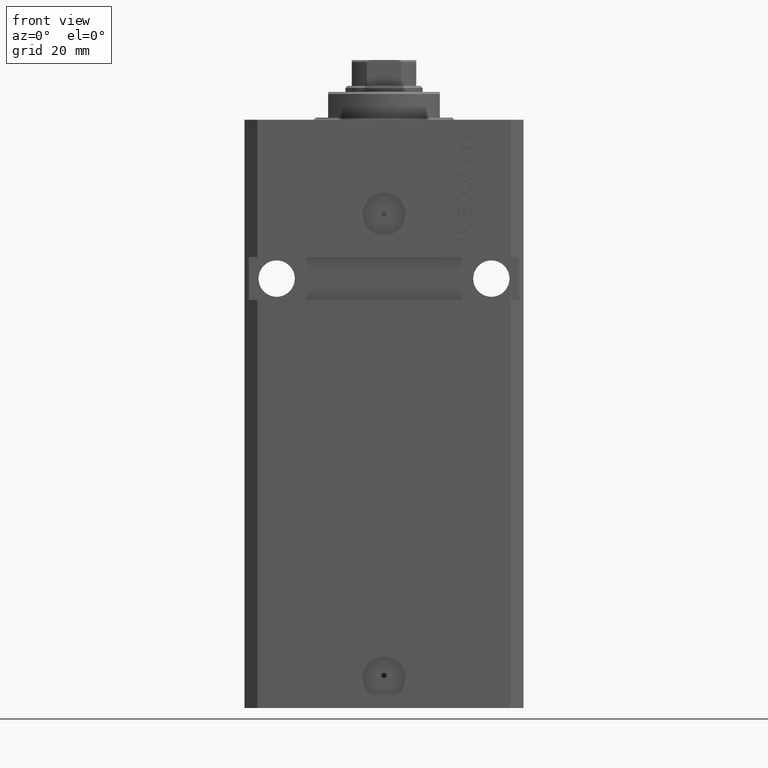
[diagram: clean part render]
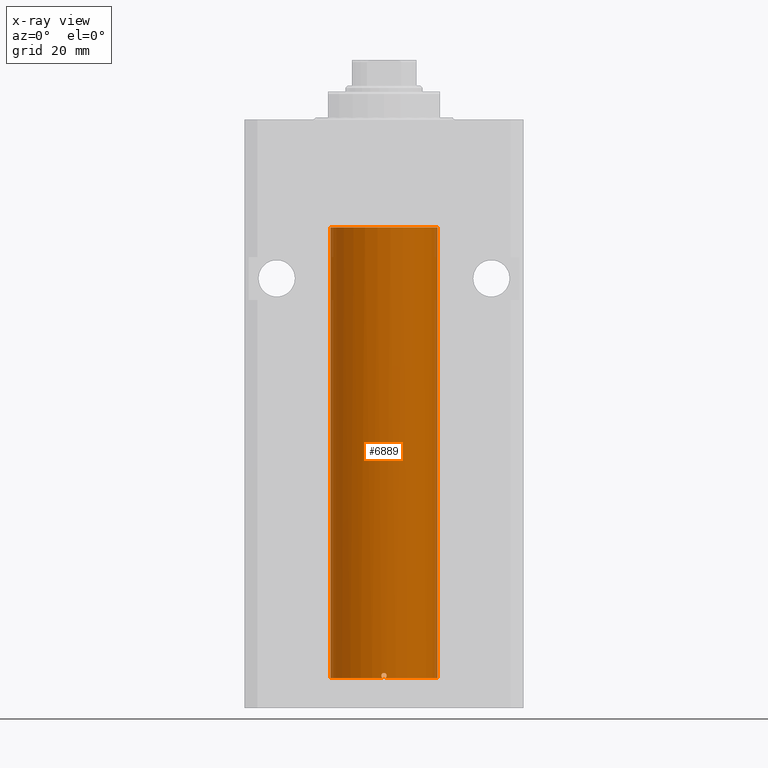
[diagram: x-ray — body ghosted, one internal face saturated and labeled with its STEP entity id]
A machine part, front view, then the same camera in x-ray: the body is ghosted and one INTERNAL B-rep face — a face not visible from any outside direction — is saturated and labeled: STEP entity #6889.
In plain terms, the highlighted cylindrical surface (partial cylindrical patch) has radius 12.5 mm, axis along (0, 0, 1).
Its self-contained STEP definition (entity closure, byte-faithful):
#137 = CARTESIAN_POINT ( 'NONE',  ( 0.3251408448057627743, -12.49631649875954409, -128.9162955772238206 ) ) ;
#516 = AXIS2_PLACEMENT_3D ( 'NONE', #30335, #27629, #41283 ) ;
#998 = CARTESIAN_POINT ( 'NONE',  ( 12.50000000000000000, 0.000000000000000000, -130.0999999999999943 ) ) ;
#2178 = VERTEX_POINT ( 'NONE', #8771 ) ;
#2382 = CARTESIAN_POINT ( 'NONE',  ( -12.48437204107163012, -0.6248637920779658295, -125.1654228524065360 ) ) ;
#2831 = CARTESIAN_POINT ( 'NONE',  ( 0.6250000000080510043, -12.48436522214846001, -129.4749999999992269 ) ) ;
#3267 = CARTESIAN_POINT ( 'NONE',  ( 0.6249999999998495648, -12.48436522214887034, -129.3934521701002325 ) ) ;
#3599 = VERTEX_POINT ( 'NONE', #35480 ) ;
#3816 = DIRECTION ( 'NONE',  ( -0.000000000000000000, -0.000000000000000000, 1.000000000000000000 ) ) ;
#4370 = CARTESIAN_POINT ( 'NONE',  ( 0.3151108292487771467, -12.49625698805481022, -130.0209369568817976 ) ) ;
#6196 = CARTESIAN_POINT ( 'NONE',  ( -12.49625500642807729, -0.3269795983093208847, -124.4429332688023351 ) ) ;
#6434 = CARTESIAN_POINT ( 'NONE',  ( 0.1629224624750996719, -12.50000332393458891, -128.8499335213027450 ) ) ;
#6822 = CIRCLE ( 'NONE', #11873, 12.50000000000000000 ) ;
#6889 = ADVANCED_FACE ( 'NONE', ( #13890 ), #37482, .F. ) ;
#7216 = VECTOR ( 'NONE', #31366, 1000.000000000000000 ) ;
#7877 = VERTEX_POINT ( 'NONE', #20058 ) ;
#8227 = LINE ( 'NONE', #32728, #11218 ) ;
#8771 = CARTESIAN_POINT ( 'NONE',  ( 12.50000000000000000, 0.000000000000000000, -130.0999999999999943 ) ) ;
#9066 = ORIENTED_EDGE ( 'NONE', *, *, #18235, .T. ) ;
#9577 = CARTESIAN_POINT ( 'NONE',  ( 0.6087772866342663347, -12.48520622767670396, -129.3115254180584088 ) ) ;
#9907 = CARTESIAN_POINT ( 'NONE',  ( -0.1650848372272809561, -12.50000000000000533, -130.0999999999999943 ) ) ;
#10054 = EDGE_CURVE ( 'NONE', #32502, #25539, #30977, .T. ) ;
#10133 = CARTESIAN_POINT ( 'NONE',  ( -0.5573321180045979206, -12.48810161786719419, -129.8014823860453646 ) ) ;
#10361 = CIRCLE ( 'NONE', #33347, 12.50000000000000000 ) ;
#11104 = CARTESIAN_POINT ( 'NONE',  ( 0.1636982395582852745, -12.49915742890631876, -130.0837239784702888 ) ) ;
#11218 = VECTOR ( 'NONE', #22621, 1000.000000000000000 ) ;
#11873 = AXIS2_PLACEMENT_3D ( 'NONE', #19669, #13785, #17168 ) ;
#11951 = CARTESIAN_POINT ( 'NONE',  ( -12.50000000000000000, 1.530808498934191521E-15, -130.0999999999999943 ) ) ;
#12846 = EDGE_LOOP ( 'NONE', ( #42443, #9066, #42719, #36272, #17054, #31923, #24996, #41287, #22444, #16171 ) ) ;
#13785 = DIRECTION ( 'NONE',  ( 0.000000000000000000, 0.000000000000000000, 1.000000000000000000 ) ) ;
#13838 = CARTESIAN_POINT ( 'NONE',  ( -0.5571821530518588084, -12.48810851326189031, -129.1482778446419672 ) ) ;
#13890 = FACE_OUTER_BOUND ( 'NONE', #12846, .T. ) ;
#14163 = CARTESIAN_POINT ( 'NONE',  ( -12.50000000000000000, 1.530808498934191521E-15, -130.0999999999999943 ) ) ;
#14187 = EDGE_CURVE ( 'NONE', #21652, #32502, #17294, .T. ) ;
#14697 = CARTESIAN_POINT ( 'NONE',  ( 0.5573988467447082984, -12.48809900631781211, -129.8014014793547801 ) ) ;
#15421 = CARTESIAN_POINT ( 'NONE',  ( -12.50000000000017941, 3.883381307462307207E-13, -125.6250000000035953 ) ) ;
#16171 = ORIENTED_EDGE ( 'NONE', *, *, #10054, .T. ) ;
#16552 = CARTESIAN_POINT ( 'NONE',  ( -0.3266214369556185160, -12.49626442692393802, -128.9177587996186958 ) ) ;
#16980 = CARTESIAN_POINT ( 'NONE',  ( -12.48811925907523879, -0.5569488909189619363, -125.3270960450317801 ) ) ;
#17054 = ORIENTED_EDGE ( 'NONE', *, *, #18023, .T. ) ;
#17168 = DIRECTION ( 'NONE',  ( 1.000000000000000000, 0.000000000000000000, 0.000000000000000000 ) ) ;
#17224 = CARTESIAN_POINT ( 'NONE',  ( 0.5460961315382579784, -12.48810487413754089, -129.1601782428394074 ) ) ;
#17294 = B_SPLINE_CURVE_WITH_KNOTS ( 'NONE', 3,
 ( #2831, #3267, #9577, #17224, #23535, #137, #6434, #30955, #16552, #13838, #20163, #37208 ),
 .UNSPECIFIED., .F., .F.,
 ( 4, 2, 2, 2, 2, 4 ),
 ( 0.0009773924225144152694, 0.001221692871650373541, 0.001465993320786332030, 0.001954594219058248573, 0.002443195117330164250, 0.002931796015602080793 ),
 .UNSPECIFIED. ) ;
#17768 = CARTESIAN_POINT ( 'NONE',  ( -0.6250000000000024425, -12.48436522214886502, -129.6398435048618865 ) ) ;
#17782 = EDGE_CURVE ( 'NONE', #25539, #21652, #30518, .T. ) ;
#18023 = EDGE_CURVE ( 'NONE', #7877, #39152, #23275, .T. ) ;
#18097 = CARTESIAN_POINT ( 'NONE',  ( 0.3844519291904531233, -12.49421963472024721, -129.9744730364705845 ) ) ;
#18235 = EDGE_CURVE ( 'NONE', #34964, #3599, #34622, .T. ) ;
#18936 = DIRECTION ( 'NONE',  ( 0.000000000000000000, 0.000000000000000000, 1.000000000000000000 ) ) ;
#19184 = EDGE_CURVE ( 'NONE', #25539, #2178, #10361, .T. ) ;
#19377 = CARTESIAN_POINT ( 'NONE',  ( 0.000000000000000000, 0.000000000000000000, -25.10000000000000142 ) ) ;
#19669 = CARTESIAN_POINT ( 'NONE',  ( 0.000000000000000000, 0.000000000000000000, -130.0999999999999943 ) ) ;
#20058 = CARTESIAN_POINT ( 'NONE',  ( -12.50000000000000000, 1.530808498934191521E-15, -25.10000000000000142 ) ) ;
#20163 = CARTESIAN_POINT ( 'NONE',  ( -0.6250000000000021094, -12.48436522214886146, -129.3100276135026832 ) ) ;
#20594 = CARTESIAN_POINT ( 'NONE',  ( -12.48435842450558297, -0.6251357828645137671, -124.8356079937140208 ) ) ;
#20658 = EDGE_CURVE ( 'NONE', #3599, #22661, #34974, .T. ) ;
#20962 = CARTESIAN_POINT ( 'NONE',  ( 0.000000000000000000, 0.000000000000000000, -130.0999999999999943 ) ) ;
#21027 = CARTESIAN_POINT ( 'NONE',  ( 1.470104640658485388E-15, -12.50000000000000000, -130.0999999999999943 ) ) ;
#21617 = EDGE_CURVE ( 'NONE', #34964, #25539, #6822, .T. ) ;
#21652 = VERTEX_POINT ( 'NONE', #30014 ) ;
#22444 = ORIENTED_EDGE ( 'NONE', *, *, #14187, .T. ) ;
#22621 = DIRECTION ( 'NONE',  ( -0.000000000000000000, -0.000000000000000000, 1.000000000000000000 ) ) ;
#22661 = VERTEX_POINT ( 'NONE', #40306 ) ;
#22762 = CARTESIAN_POINT ( 'NONE',  ( -0.6250000000000023315, -12.48436522214886324, -129.4749999999999943 ) ) ;
#22836 = CARTESIAN_POINT ( 'NONE',  ( 1.470104640658485388E-15, -12.50000000000000000, -130.0999999999999943 ) ) ;
#23275 = CIRCLE ( 'NONE', #37585, 12.50000000000000000 ) ;
#23535 = CARTESIAN_POINT ( 'NONE',  ( 0.5002336959535143013, -12.49012317397092531, -129.0913311327716144 ) ) ;
#24068 = CARTESIAN_POINT ( 'NONE',  ( 1.470104640658485388E-15, -12.50000000000000000, -130.0999999999999943 ) ) ;
#24623 = CARTESIAN_POINT ( 'NONE',  ( 12.50000000000000000, 0.000000000000000000, -25.10000000000000142 ) ) ;
#24996 = ORIENTED_EDGE ( 'NONE', *, *, #19184, .F. ) ;
#25539 = VERTEX_POINT ( 'NONE', #22836 ) ;
#26868 = VECTOR ( 'NONE', #3816, 1000.000000000000000 ) ;
#27629 = DIRECTION ( 'NONE',  ( -0.000000000000000000, -0.000000000000000000, 1.000000000000000000 ) ) ;
#28217 = LINE ( 'NONE', #998, #7216 ) ;
#29029 = EDGE_CURVE ( 'NONE', #22661, #7877, #8227, .T. ) ;
#29161 = CARTESIAN_POINT ( 'NONE',  ( -12.50000000000000178, -0.1631389274721005422, -125.6250000000001847 ) ) ;
#30014 = CARTESIAN_POINT ( 'NONE',  ( 0.6250000000080510043, -12.48436522214846001, -129.4749999999992269 ) ) ;
#30273 = CARTESIAN_POINT ( 'NONE',  ( -12.49627279065598628, -0.3263143231498909502, -125.5574072589037371 ) ) ;
#30335 = CARTESIAN_POINT ( 'NONE',  ( 0.000000000000000000, 0.000000000000000000, -130.0999999999999943 ) ) ;
#30518 = B_SPLINE_CURVE_WITH_KNOTS ( 'NONE', 3,
 ( #21027, #41873, #11104, #4370, #18097, #14697, #42103, #32474 ),
 .UNSPECIFIED., .F., .F.,
 ( 4, 2, 2, 4 ),
 ( 0.000000000000000000, 0.0002443481056286184541, 0.0004886962112572370166, 0.0009773924225144152694 ),
 .UNSPECIFIED. ) ;
#30955 = CARTESIAN_POINT ( 'NONE',  ( -0.1634321124498667177, -12.49999667087055322, -128.8500665825944793 ) ) ;
#30977 = B_SPLINE_CURVE_WITH_KNOTS ( 'NONE', 3,
 ( #31062, #17768, #10133, #41335, #9907, #24068 ),
 .UNSPECIFIED., .F., .F.,
 ( 4, 2, 4 ),
 ( 0.002931796015602080360, 0.003420015203430315336, 0.003908234391258549878 ),
 .UNSPECIFIED. ) ;
#31062 = CARTESIAN_POINT ( 'NONE',  ( -0.6250000000000023315, -12.48436522214886324, -129.4749999999999943 ) ) ;
#31297 = DIRECTION ( 'NONE',  ( 1.000000000000000000, 0.000000000000000000, 0.000000000000000000 ) ) ;
#31366 = DIRECTION ( 'NONE',  ( -0.000000000000000000, -0.000000000000000000, 1.000000000000000000 ) ) ;
#31923 = ORIENTED_EDGE ( 'NONE', *, *, #38264, .F. ) ;
#32474 = CARTESIAN_POINT ( 'NONE',  ( 0.6250000000080510043, -12.48436522214846001, -129.4749999999992269 ) ) ;
#32502 = VERTEX_POINT ( 'NONE', #22762 ) ;
#32728 = CARTESIAN_POINT ( 'NONE',  ( -12.50000000000000000, 1.530808498934191521E-15, -130.0999999999999943 ) ) ;
#33347 = AXIS2_PLACEMENT_3D ( 'NONE', #20962, #34652, #31297 ) ;
#34622 = LINE ( 'NONE', #14163, #26868 ) ;
#34652 = DIRECTION ( 'NONE',  ( 0.000000000000000000, 0.000000000000000000, 1.000000000000000000 ) ) ;
#34964 = VERTEX_POINT ( 'NONE', #11951 ) ;
#34974 = B_SPLINE_CURVE_WITH_KNOTS ( 'NONE', 3,
 ( #15421, #29161, #30273, #16980, #2382, #20594, #37192, #6196, #43701, #37634 ),
 .UNSPECIFIED., .F., .F.,
 ( 4, 2, 2, 2, 4 ),
 ( 0.001954339881912777865, 0.002442813509249231168, 0.002931287136585684037, 0.003419760763922137341, 0.003908234391258590644 ),
 .UNSPECIFIED. ) ;
#35480 = CARTESIAN_POINT ( 'NONE',  ( -12.50000000000017941, 3.883381307462307207E-13, -125.6250000000035953 ) ) ;
#36272 = ORIENTED_EDGE ( 'NONE', *, *, #29029, .T. ) ;
#37192 = CARTESIAN_POINT ( 'NONE',  ( -12.48809300548636081, -0.5575284115737683122, -124.6738082297086123 ) ) ;
#37208 = CARTESIAN_POINT ( 'NONE',  ( -0.6250000000000023315, -12.48436522214886324, -129.4749999999999943 ) ) ;
#37482 = CYLINDRICAL_SURFACE ( 'NONE', #516, 12.50000000000000000 ) ;
#37585 = AXIS2_PLACEMENT_3D ( 'NONE', #19377, #18936, #43159 ) ;
#37634 = CARTESIAN_POINT ( 'NONE',  ( -12.50000000000000000, -1.890568805888175348E-14, -124.3750000000000000 ) ) ;
#38264 = EDGE_CURVE ( 'NONE', #2178, #39152, #28217, .T. ) ;
#39152 = VERTEX_POINT ( 'NONE', #24623 ) ;
#40306 = CARTESIAN_POINT ( 'NONE',  ( -12.50000000000000000, -1.890568805888175348E-14, -124.3750000000000000 ) ) ;
#41283 = DIRECTION ( 'NONE',  ( 1.000000000000000000, 0.000000000000000000, 0.000000000000000000 ) ) ;
#41287 = ORIENTED_EDGE ( 'NONE', *, *, #17782, .T. ) ;
#41335 = CARTESIAN_POINT ( 'NONE',  ( -0.3268155536464767974, -12.49625914831440454, -130.0321368162777560 ) ) ;
#41873 = CARTESIAN_POINT ( 'NONE',  ( 0.08262306818363997218, -12.50000000000000178, -130.1000000000000227 ) ) ;
#42103 = CARTESIAN_POINT ( 'NONE',  ( 0.6250000000003168577, -12.48436522214885080, -129.6381274754031381 ) ) ;
#42443 = ORIENTED_EDGE ( 'NONE', *, *, #21617, .F. ) ;
#42719 = ORIENTED_EDGE ( 'NONE', *, *, #20658, .T. ) ;
#43159 = DIRECTION ( 'NONE',  ( 1.000000000000000000, 0.000000000000000000, 0.000000000000000000 ) ) ;
#43701 = CARTESIAN_POINT ( 'NONE',  ( -12.50000000000000178, -0.1651708725693049051, -124.3750000000000000 ) ) ;